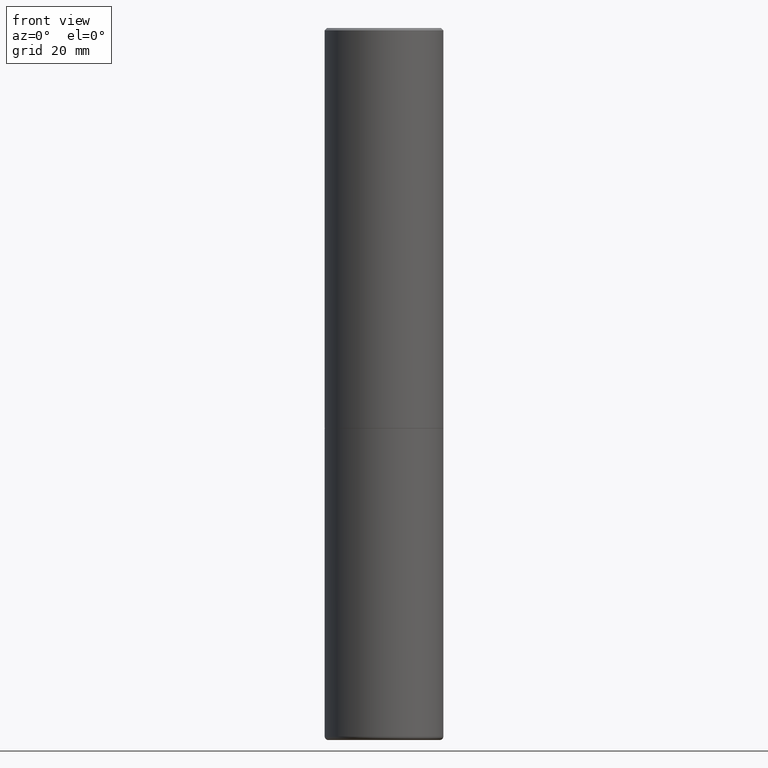
[diagram: clean part render]
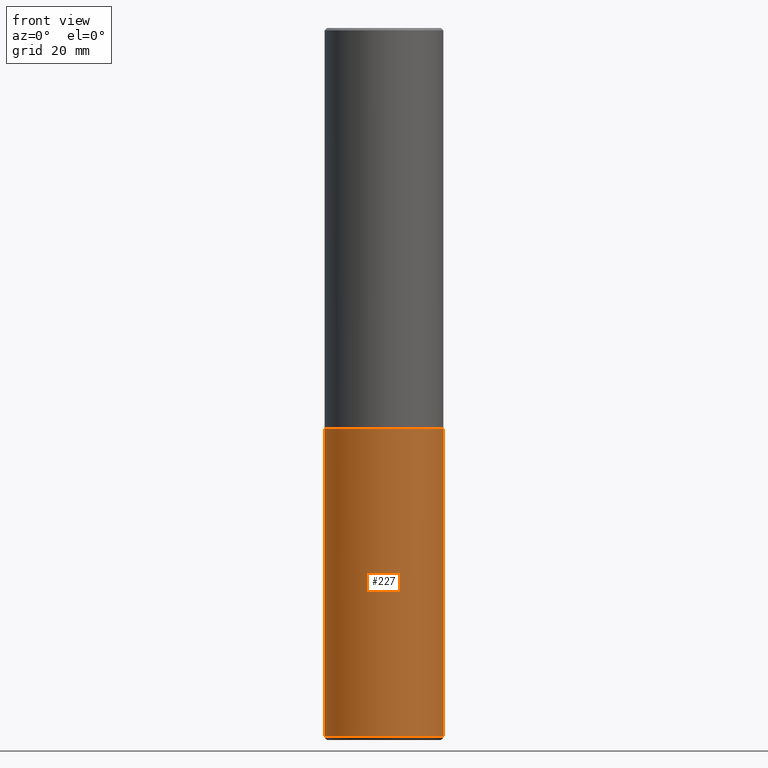
[diagram: same view with one face highlighted and labeled with its STEP entity id]
A machine part, front view. The second image highlights one B-rep face of the part: STEP entity #227.
In plain terms, the highlighted cylindrical surface (partial cylindrical patch) has radius 12.7 mm, axis along (-0, 0, 1).
Its self-contained STEP definition (entity closure, byte-faithful):
#4 = EDGE_CURVE ( 'NONE', #128, #76, #237, .T. ) ;
#10 = ORIENTED_EDGE ( 'NONE', *, *, #309, .T. ) ;
#14 = EDGE_CURVE ( 'NONE', #248, #27, #313, .T. ) ;
#16 = FACE_OUTER_BOUND ( 'NONE', #345, .T. ) ;
#21 = DIRECTION ( 'NONE',  ( 1.000000000000000000, -6.982962677686269866E-15, 0.000000000000000000 ) ) ;
#27 = VERTEX_POINT ( 'NONE', #469 ) ;
#42 = ORIENTED_EDGE ( 'NONE', *, *, #14, .T. ) ;
#52 = AXIS2_PLACEMENT_3D ( 'NONE', #169, #132, #165 ) ;
#69 = VECTOR ( 'NONE', #352, 39.37007874015748143 ) ;
#76 = VERTEX_POINT ( 'NONE', #354 ) ;
#99 = CIRCLE ( 'NONE', #52, 0.4999999999999994449 ) ;
#128 = VERTEX_POINT ( 'NONE', #319 ) ;
#132 = DIRECTION ( 'NONE',  ( -2.445468806185136597E-29, 3.491481338843145583E-15, 1.000000000000000000 ) ) ;
#139 = EDGE_CURVE ( 'NONE', #76, #27, #99, .T. ) ;
#140 = DIRECTION ( 'NONE',  ( -2.445468806185136597E-29, 3.491481338843145583E-15, 1.000000000000000000 ) ) ;
#144 = AXIS2_PLACEMENT_3D ( 'NONE', #369, #402, #286 ) ;
#165 = DIRECTION ( 'NONE',  ( 1.000000000000000000, -6.982962677686266711E-15, 0.000000000000000000 ) ) ;
#169 = CARTESIAN_POINT ( 'NONE',  ( 8.253457220874838256E-29, -1.178374951859561925E-14, -3.375000000000000888 ) ) ;
#203 = CARTESIAN_POINT ( 'NONE',  ( -0.4999999999999991673, 3.552713678800495013E-15, -2.459467545127448967E-29 ) ) ;
#223 = AXIS2_PLACEMENT_3D ( 'NONE', #291, #140, #21 ) ;
#227 = ADVANCED_FACE ( 'NONE', ( #16 ), #256, .T. ) ;
#237 = LINE ( 'NONE', #203, #292 ) ;
#248 = VERTEX_POINT ( 'NONE', #401 ) ;
#256 = CYLINDRICAL_SURFACE ( 'NONE', #144, 0.4999999999999991673 ) ;
#261 = CIRCLE ( 'NONE', #223, 0.4999999999999989453 ) ;
#267 = ORIENTED_EDGE ( 'NONE', *, *, #4, .F. ) ;
#286 = DIRECTION ( 'NONE',  ( 1.000000000000000000, -6.982962677686266711E-15, 4.876176775795935232E-29 ) ) ;
#291 = CARTESIAN_POINT ( 'NONE',  ( 1.459945156640402969E-28, -2.084414758124090713E-14, -5.970001142308075437 ) ) ;
#292 = VECTOR ( 'NONE', #388, 39.37007874015748143 ) ;
#309 = EDGE_CURVE ( 'NONE', #128, #248, #261, .T. ) ;
#313 = LINE ( 'NONE', #358, #69 ) ;
#319 = CARTESIAN_POINT ( 'NONE',  ( -0.4999999999999989453, -1.276123487111776936E-14, -5.970001142308075437 ) ) ;
#320 = ORIENTED_EDGE ( 'NONE', *, *, #139, .F. ) ;
#345 = EDGE_LOOP ( 'NONE', ( #267, #10, #42, #320 ) ) ;
#352 = DIRECTION ( 'NONE',  ( -2.445468806185136877E-29, 3.491481338843145188E-15, 1.000000000000000000 ) ) ;
#354 = CARTESIAN_POINT ( 'NONE',  ( -0.4999999999999993894, -1.276123487111776936E-14, -3.375000000000000888 ) ) ;
#358 = CARTESIAN_POINT ( 'NONE',  ( 0.4999999999999991673, -3.491481338843127439E-15, 2.438088387897963693E-29 ) ) ;
#369 = CARTESIAN_POINT ( 'NONE',  ( 0.000000000000000000, 0.000000000000000000, 0.000000000000000000 ) ) ;
#388 = DIRECTION ( 'NONE',  ( -2.445468806185136877E-29, 3.491481338843145188E-15, 1.000000000000000000 ) ) ;
#401 = CARTESIAN_POINT ( 'NONE',  ( 0.4999999999999989453, -2.433562892008403418E-14, -5.970001142308075437 ) ) ;
#402 = DIRECTION ( 'NONE',  ( -2.445468806185136597E-29, 3.491481338843145583E-15, 1.000000000000000000 ) ) ;
#469 = CARTESIAN_POINT ( 'NONE',  ( 0.4999999999999994449, -1.527523085743874787E-14, -3.375000000000000888 ) ) ;